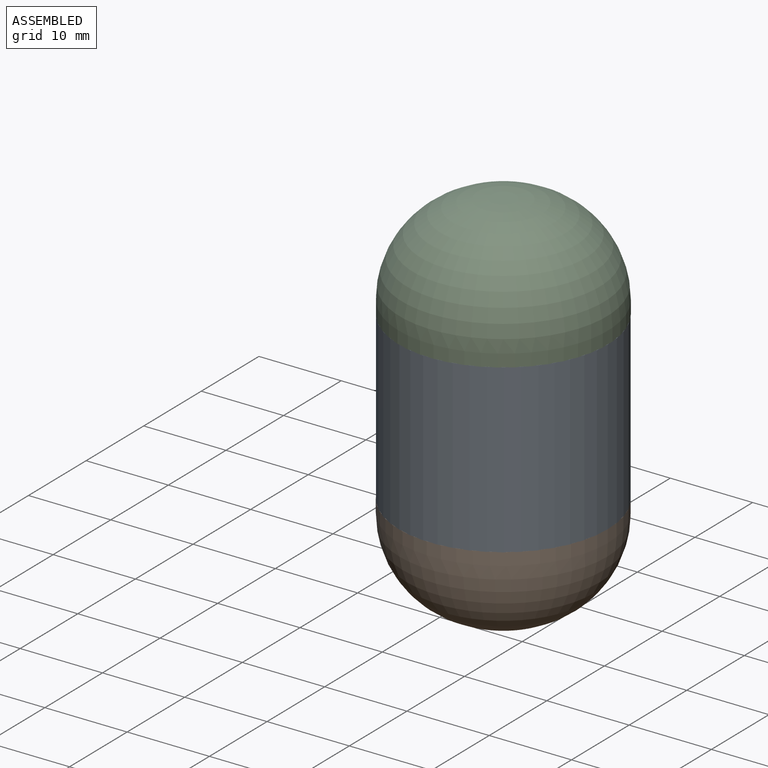
[diagram: assembled view]
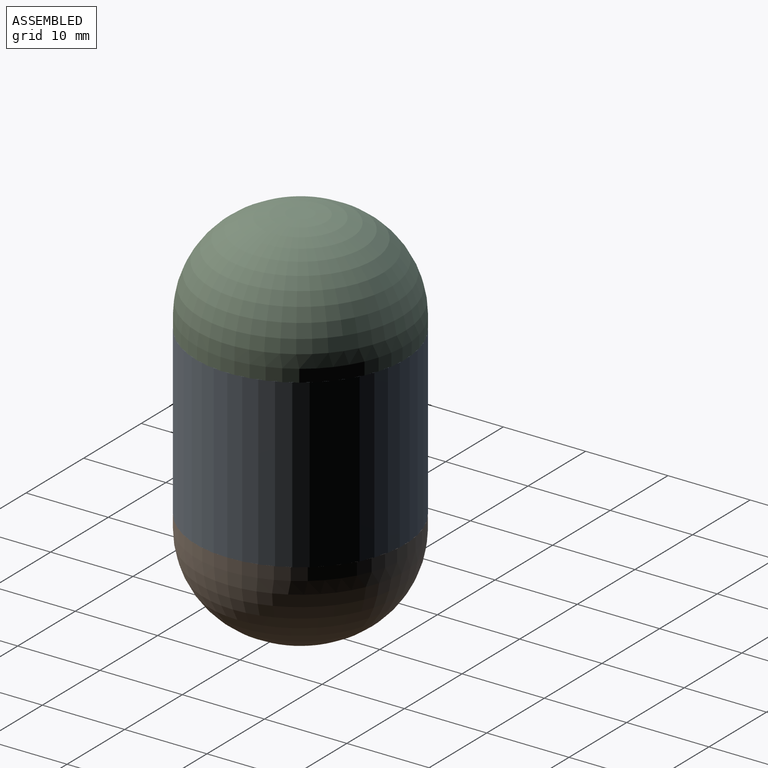
[diagram: assembled view, second angle]
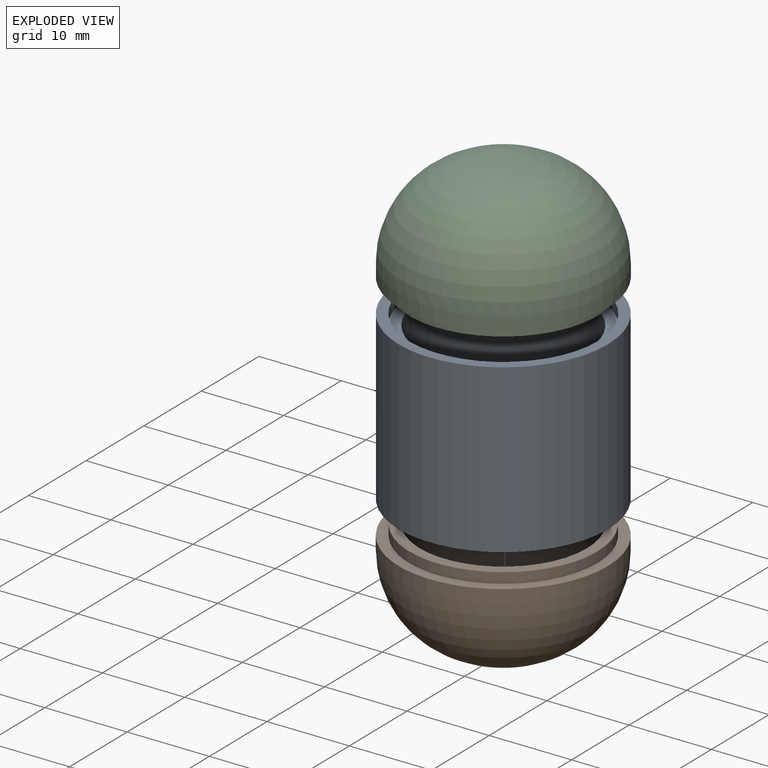
[diagram: exploded view]
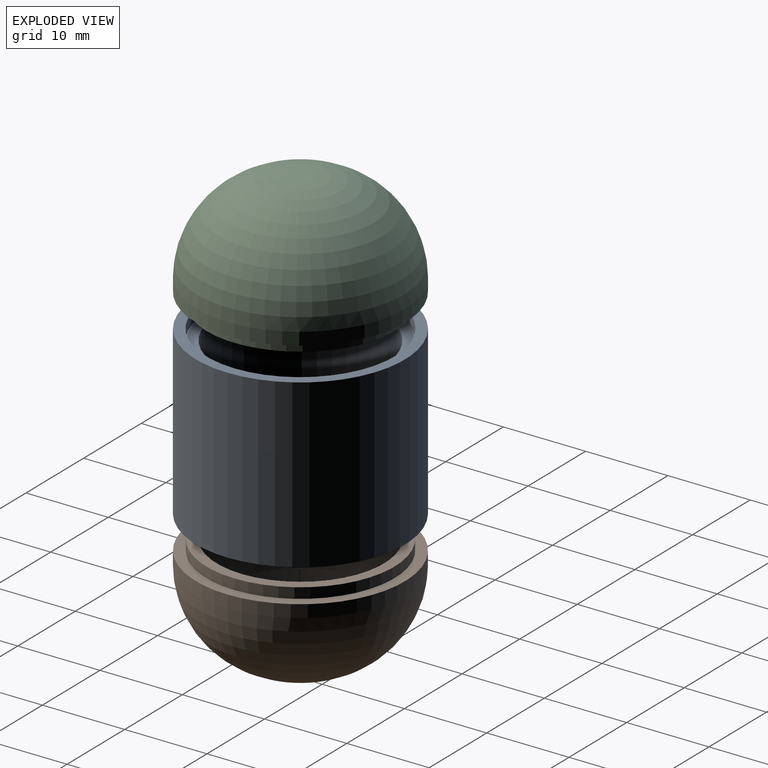
[diagram: exploded view, second angle]
ASSEMBLY  parts=3 mates=2
PART A: 8 faces, bbox 25.4x25.4x20.3 mm
  f0: cylinder r=10.16mm len=20.32mm, axis (0,0,-1), area 1131.8mm2, adj f1,f2
  f1: plane 22.91x22.91mm, normal (0,0,1), area 88mm2, adj f0,f5
  f2: plane 22.91x22.91mm, normal (0,0,-1), area 88mm2, adj f0,f3
  f3: cylinder r=11.46mm len=22.91mm, axis (0,0,-1), area 93.2mm2, adj f2,f4
  f4: plane 25.4x25.4mm, normal (0,0,-1), area 94.4mm2, adj f3,f7
  f5: cylinder r=11.46mm len=22.91mm, axis (0,0,-1), area 93.2mm2, adj f1,f6
  f6: plane 25.4x25.4mm, normal (0,0,1), area 94.4mm2, adj f5,f7
  f7: cylinder r=12.7mm len=25.4mm, axis (0,0,-1), area 1621.5mm2, adj f4,f6
PART B: 8 faces, bbox 25.4x25.4x14 mm
  f0: plane 3.05x3.05mm, normal (0,0,1), area 7.3mm2, adj f1
  f1: torus R=1.52mm, axis (0,0,-1), area 952.9mm2, adj f0,f2
  f2: cylinder r=12.7mm len=25.4mm, axis (0,0,-1), area 121.6mm2, adj f1,f3
  f3: plane 25.4x25.4mm, normal (0,0,-1), area 96.3mm2, adj f2,f4
  f4: cylinder r=11.43mm len=22.86mm, axis (0,0,-1), area 91.2mm2, adj f3,f5
  f5: plane 22.86x22.86mm, normal (0,0,-1), area 86.1mm2, adj f4,f6
  f6: cylinder r=10.16mm len=20.32mm, axis (0,0,-1), area 210.8mm2, adj f5,f7
  f7: sphere r=10.16mm, area 648.6mm2, adj f6
PART C: same geometry as B
PLACE A t=(24.4,20.45,-11.42)mm
PLACE B rot(axis=(0,1,0),180deg) t=(24.4,20.45,-21.55)mm
PLACE C t=(24.4,20.45,-1.28)mm
MATE fastened B.f2 <-> A.f7  axis (0,0,1) through (24.4,20.45,-20.28)mm
MATE fastened A.f7 <-> C.f2  axis (0,0,1) through (24.4,20.45,-2.55)mm
